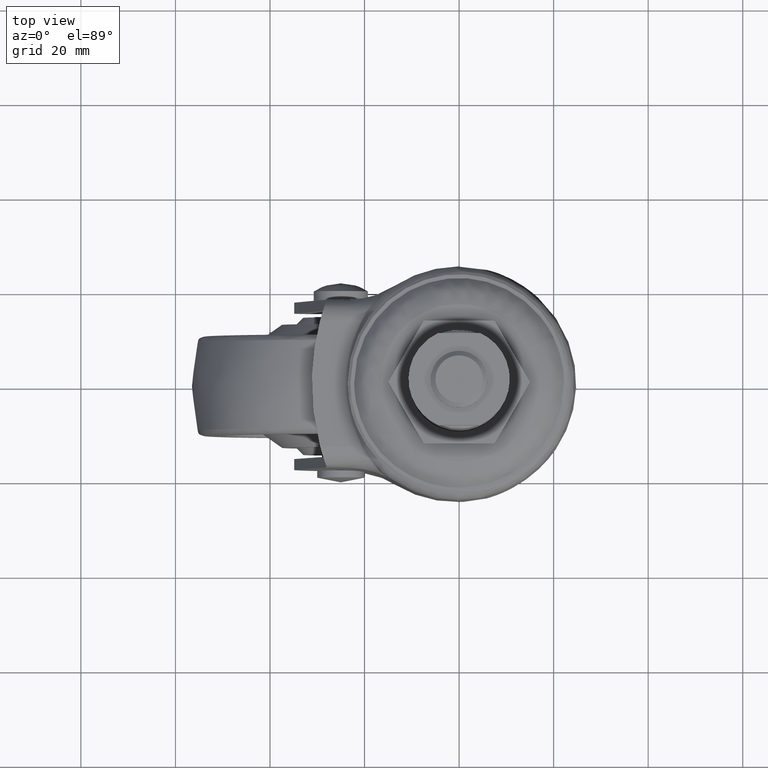
[diagram: clean part render]
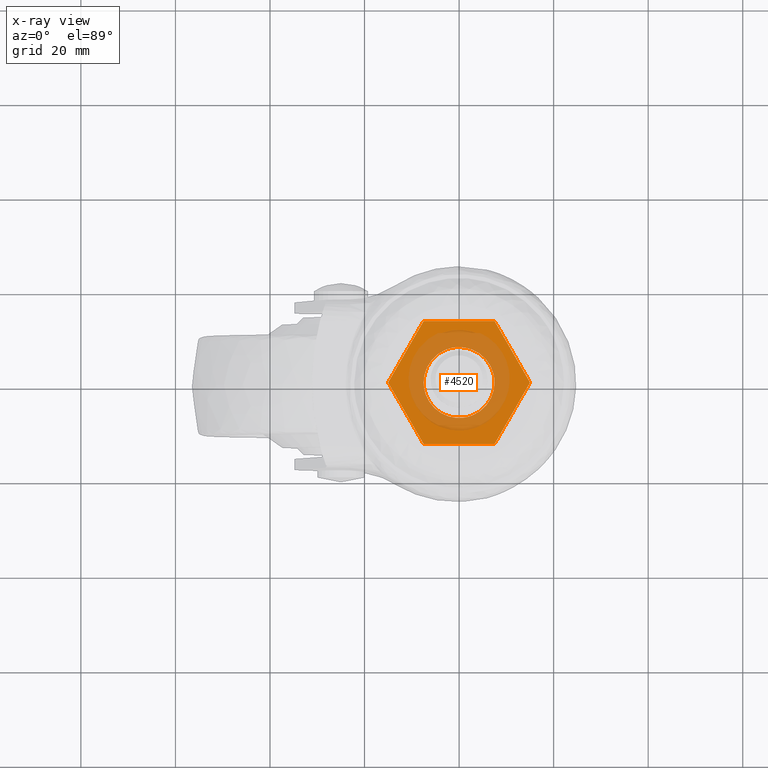
[diagram: x-ray — body ghosted, one internal face saturated and labeled with its STEP entity id]
A machine part, top view, then the same camera in x-ray: the body is ghosted and one INTERNAL B-rep face — a face not visible from any outside direction — is saturated and labeled: STEP entity #4520.
In plain terms, the highlighted face is a freeform B-spline surface patch.
Its self-contained STEP definition (entity closure, byte-faithful):
#2510=CARTESIAN_POINT('',(0.885900285101613,-7.453088053392865,-4.000000000000085));
#2511=VERTEX_POINT('',#2510);
#2517=CARTESIAN_POINT('',(-7.505554000000100,0.0,-4.000000000000085));
#2518=VERTEX_POINT('',#2517);
#2519=CARTESIAN_POINT('',(0.885900285101613,-7.453088053392865,-4.000000000000085));
#2520=CARTESIAN_POINT('',(0.444503746043031,-7.505554000000099,-4.000000000000084));
#2521=CARTESIAN_POINT('',(0.0,-7.505554000000100,-4.000000000000085));
#2522=CARTESIAN_POINT('',(-7.505554000000100,-7.505554000000100,-4.000000000000084));
#2523=CARTESIAN_POINT('',(-7.505554000000100,0.0,-4.000000000000085));
#2531=(BOUNDED_CURVE()B_SPLINE_CURVE(2,(#2519,#2520,#2521,#2522,#2523),.UNSPECIFIED.,.F.,.U.)B_SPLINE_CURVE_WITH_KNOTS((3,2,3),(0.229562746461098,0.250000000000000,0.500000000000000),.UNSPECIFIED.)CURVE()GEOMETRIC_REPRESENTATION_ITEM()RATIONAL_B_SPLINE_CURVE((0.956027289172844,0.976056268109138,1.0,0.707106781186547,1.0))REPRESENTATION_ITEM(''));
#2532=EDGE_CURVE('',#2511,#2518,#2531,.T.);
#2534=CARTESIAN_POINT('',(-0.458203110205601,7.491554628828078,-4.000000000000085));
#2535=VERTEX_POINT('',#2534);
#2536=CARTESIAN_POINT('',(-7.505554000000100,0.0,-4.000000000000085));
#2537=CARTESIAN_POINT('',(-7.505554000000100,7.060520183088997,-4.000000000000085));
#2538=CARTESIAN_POINT('',(-0.458203110205601,7.491554628828078,-4.000000000000085));
#2546=(BOUNDED_CURVE()B_SPLINE_CURVE(2,(#2536,#2537,#2538),.UNSPECIFIED.,.F.,.U.)B_SPLINE_CURVE_WITH_KNOTS((3,3),(0.500000000000000,0.739332962237104),.UNSPECIFIED.)CURVE()GEOMETRIC_REPRESENTATION_ITEM()RATIONAL_B_SPLINE_CURVE((1.0,0.719603993288864,0.976072041662777))REPRESENTATION_ITEM(''));
#2547=EDGE_CURVE('',#2518,#2535,#2546,.T.);
#2625=CARTESIAN_POINT('',(7.505554000000100,0.0,-4.000000000000085));
#2626=VERTEX_POINT('',#2625);
#2627=CARTESIAN_POINT('',(-0.458203110205601,7.491554628828078,-4.000000000000085));
#2628=CARTESIAN_POINT('',(-0.229315414892667,7.505554000000100,-4.000000000000086));
#2629=CARTESIAN_POINT('',(0.0,7.505554000000100,-4.000000000000085));
#2630=CARTESIAN_POINT('',(7.505554000000100,7.505554000000100,-4.000000000000084));
#2631=CARTESIAN_POINT('',(7.505554000000100,0.0,-4.000000000000085));
#2639=(BOUNDED_CURVE()B_SPLINE_CURVE(2,(#2627,#2628,#2629,#2630,#2631),.UNSPECIFIED.,.F.,.U.)B_SPLINE_CURVE_WITH_KNOTS((3,2,3),(0.739332962237104,0.750000000000000,1.0),.UNSPECIFIED.)CURVE()GEOMETRIC_REPRESENTATION_ITEM()RATIONAL_B_SPLINE_CURVE((0.976072041662777,0.987502787897683,1.0,0.707106781186547,1.0))REPRESENTATION_ITEM(''));
#2640=EDGE_CURVE('',#2535,#2626,#2639,.T.);
#2642=CARTESIAN_POINT('',(7.505554000000100,0.0,-4.000000000000085));
#2643=CARTESIAN_POINT('',(7.505554000000100,-6.666252707933686,-4.000000000000085));
#2644=CARTESIAN_POINT('',(0.885900285101613,-7.453088053392865,-4.000000000000085));
#2652=(BOUNDED_CURVE()B_SPLINE_CURVE(2,(#2642,#2643,#2644),.UNSPECIFIED.,.F.,.U.)B_SPLINE_CURVE_WITH_KNOTS((3,3),(0.0,0.229562746461098),.UNSPECIFIED.)CURVE()GEOMETRIC_REPRESENTATION_ITEM()RATIONAL_B_SPLINE_CURVE((1.0,0.731050513077410,0.956027289172844))REPRESENTATION_ITEM(''));
#2653=EDGE_CURVE('',#2626,#2511,#2652,.T.);
#4327=CARTESIAN_POINT('',(-7.505553000000000,-13.0,-4.000000000000116));
#4328=VERTEX_POINT('',#4327);
#4334=CARTESIAN_POINT('',(7.505554000000000,-13.0,-4.000000000000116));
#4335=VERTEX_POINT('',#4334);
#4336=CARTESIAN_POINT('',(7.505554000000000,-13.0,-4.000000000000116));
#4337=CARTESIAN_POINT('',(-7.505553000000000,-13.0,-4.000000000000116));
#4338=QUASI_UNIFORM_CURVE('',1,(#4336,#4337),.UNSPECIFIED.,.F.,.U.);
#4339=EDGE_CURVE('',#4335,#4328,#4338,.T.);
#4362=CARTESIAN_POINT('',(15.011107000000001,0.0,-4.000000000000116));
#4363=VERTEX_POINT('',#4362);
#4364=CARTESIAN_POINT('',(15.011107000000001,0.0,-4.000000000000116));
#4365=CARTESIAN_POINT('',(7.505554000000000,-13.0,-4.000000000000116));
#4366=QUASI_UNIFORM_CURVE('',1,(#4364,#4365),.UNSPECIFIED.,.F.,.U.);
#4367=EDGE_CURVE('',#4363,#4335,#4366,.T.);
#4390=CARTESIAN_POINT('',(7.505554000000000,13.0,-4.000000000000116));
#4391=VERTEX_POINT('',#4390);
#4392=CARTESIAN_POINT('',(7.505554000000000,13.0,-4.000000000000116));
#4393=CARTESIAN_POINT('',(15.011107000000001,0.0,-4.000000000000116));
#4394=QUASI_UNIFORM_CURVE('',1,(#4392,#4393),.UNSPECIFIED.,.F.,.U.);
#4395=EDGE_CURVE('',#4391,#4363,#4394,.T.);
#4418=CARTESIAN_POINT('',(-7.505553000000000,13.0,-4.000000000000116));
#4419=VERTEX_POINT('',#4418);
#4420=CARTESIAN_POINT('',(-7.505553000000000,13.0,-4.000000000000116));
#4421=CARTESIAN_POINT('',(7.505554000000000,13.0,-4.000000000000116));
#4422=QUASI_UNIFORM_CURVE('',1,(#4420,#4421),.UNSPECIFIED.,.F.,.U.);
#4423=EDGE_CURVE('',#4419,#4391,#4422,.T.);
#4446=CARTESIAN_POINT('',(-15.011107000000001,0.0,-4.000000000000116));
#4447=VERTEX_POINT('',#4446);
#4448=CARTESIAN_POINT('',(-15.011107000000001,0.0,-4.000000000000116));
#4449=CARTESIAN_POINT('',(-7.505553000000000,13.0,-4.000000000000116));
#4450=QUASI_UNIFORM_CURVE('',1,(#4448,#4449),.UNSPECIFIED.,.F.,.U.);
#4451=EDGE_CURVE('',#4447,#4419,#4450,.T.);
#4472=CARTESIAN_POINT('',(-7.505553000000000,-13.0,-4.000000000000116));
#4473=CARTESIAN_POINT('',(-15.011107000000001,0.0,-4.000000000000116));
#4474=QUASI_UNIFORM_CURVE('',1,(#4472,#4473),.UNSPECIFIED.,.F.,.U.);
#4475=EDGE_CURVE('',#4328,#4447,#4474,.T.);
#4501=CARTESIAN_POINT('',(-16.510717094765251,-14.298699949606950,-4.000000000000085));
#4502=CARTESIAN_POINT('',(16.510717363184760,-14.298699949606950,-4.000000000000085));
#4503=CARTESIAN_POINT('',(-16.510717094765251,14.298700646981301,-4.000000000000085));
#4504=CARTESIAN_POINT('',(16.510717363184760,14.298700646981301,-4.000000000000085));
#4505=B_SPLINE_SURFACE_WITH_KNOTS('',1,1,((#4501,#4503),(#4502,#4504)),.UNSPECIFIED.,.F.,.F.,.U.,(2,2),(2,2),(0.0,33.021434457950008),(0.0,28.597400596588251),.UNSPECIFIED.);
#4506=ORIENTED_EDGE('',*,*,#4475,.T.);
#4507=ORIENTED_EDGE('',*,*,#4451,.T.);
#4508=ORIENTED_EDGE('',*,*,#4423,.T.);
#4509=ORIENTED_EDGE('',*,*,#4395,.T.);
#4510=ORIENTED_EDGE('',*,*,#4367,.T.);
#4511=ORIENTED_EDGE('',*,*,#4339,.T.);
#4512=EDGE_LOOP('',(#4506,#4507,#4508,#4509,#4510,#4511));
#4513=FACE_OUTER_BOUND('',#4512,.T.);
#4514=ORIENTED_EDGE('',*,*,#2547,.F.);
#4515=ORIENTED_EDGE('',*,*,#2532,.F.);
#4516=ORIENTED_EDGE('',*,*,#2653,.F.);
#4517=ORIENTED_EDGE('',*,*,#2640,.F.);
#4518=EDGE_LOOP('',(#4514,#4515,#4516,#4517));
#4519=FACE_BOUND('',#4518,.T.);
#4520=ADVANCED_FACE('',(#4513,#4519),#4505,.F.);